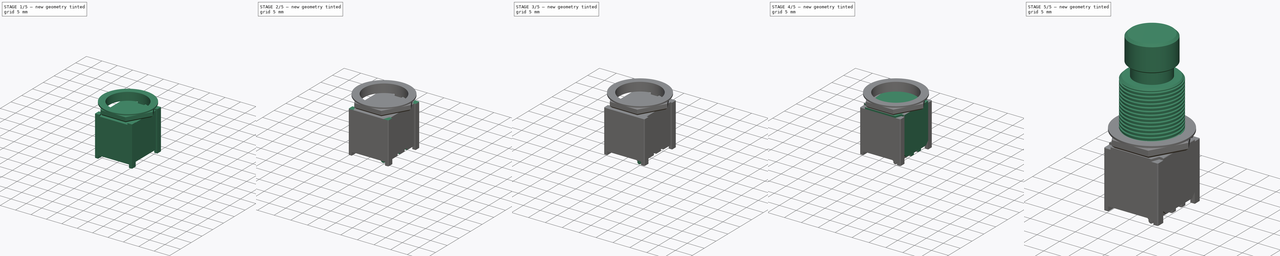
[diagram: build sequence overview — one tinted view per stage of 5, left to right]
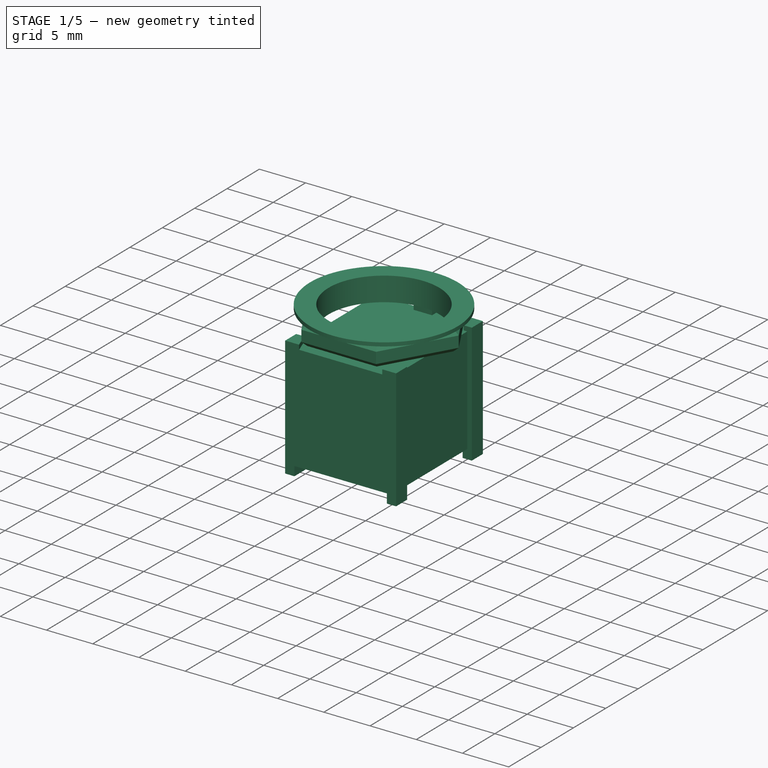
[diagram: stage 1 of 5 — iso view after this stage's code; geometry added in this stage tinted green]
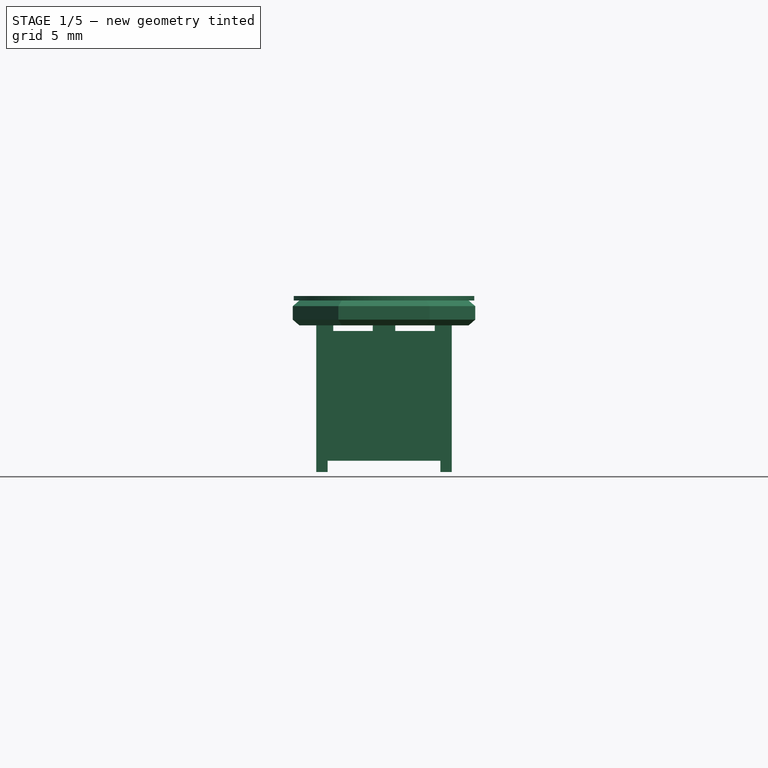
[diagram: stage 1 of 5 — front view after this stage's code; geometry added in this stage tinted green]
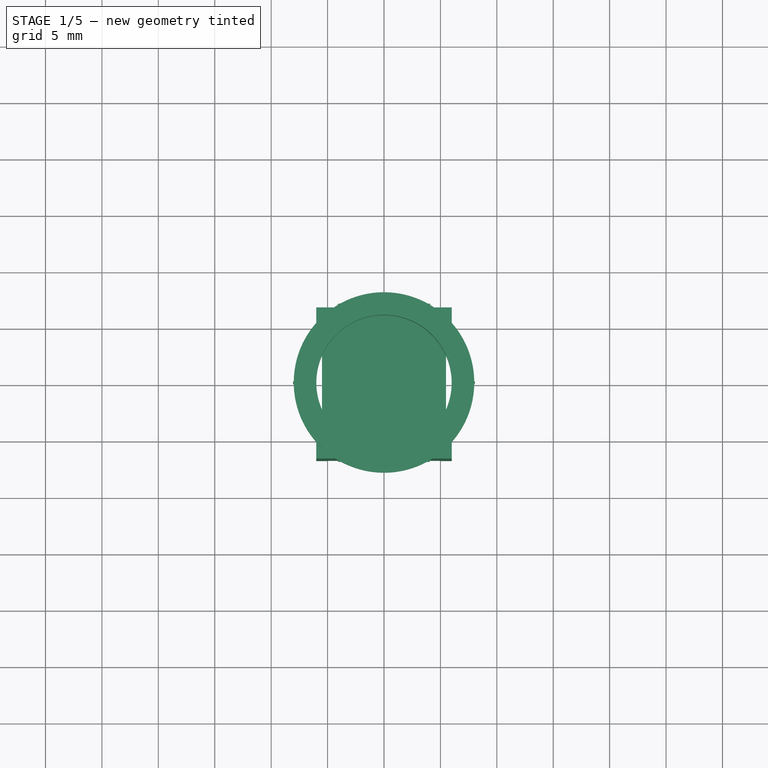
[diagram: stage 1 of 5 — top view after this stage's code; geometry added in this stage tinted green]
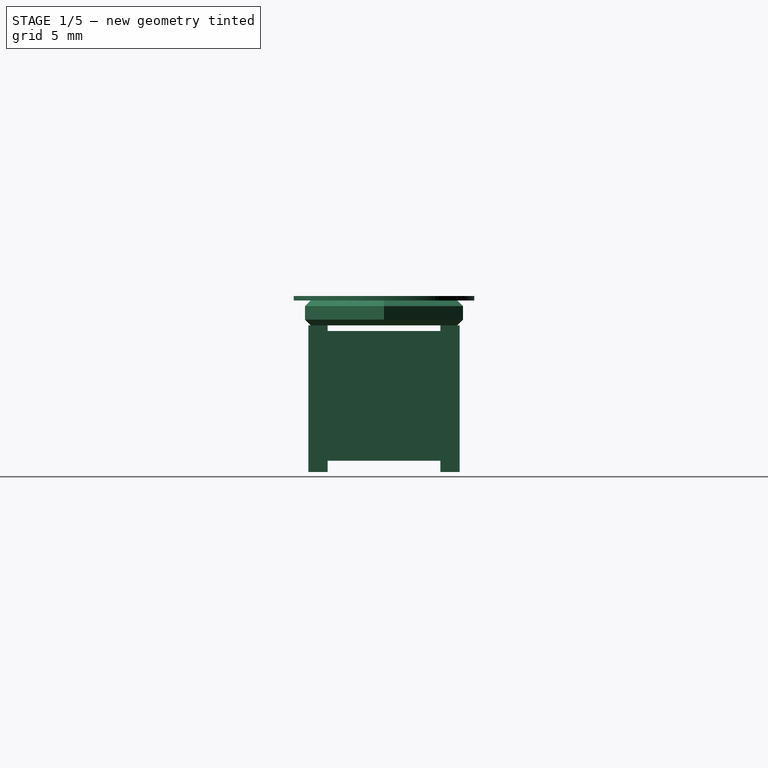
[diagram: stage 1 of 5 — right view after this stage's code; geometry added in this stage tinted green]
FCSTD DOCUMENT  (FreeCAD 0.19R16945 (Git))
Label: Alpha Taiwan SF12011 SF12020
License: All rights reserved
LicenseURL: http://en.wikipedia.org/wiki/All_rights_reserved
objects: PartDesign::Body×29, Sketcher::SketchObject×22, PartDesign::FeatureBase×19, PartDesign::Pad×14, PartDesign::Mirrored×10, PartDesign::Pocket×7, PartDesign::ShapeBinder×6, PartDesign::Fillet×6, PartDesign::Chamfer×4, PartDesign::MultiTransform×4, App::DocumentObjectGroup×4, Part::Helix×1, PartDesign::SubtractivePipe×1
note: 145 computed .brp shape members not serialized (recipe doc carries the construction recipe); baked Part::Feature solids carry a one-line shape summary decoded from their .brp

FEATURE [Sketcher::SketchObject] Sketch
  MapMode = 5
  Support = -> [XY_Plane]
  sketch-geometry (4):
    g0: LineSegment StartX=-6 StartY=6.7 StartZ=0 EndX=6 EndY=6.7 EndZ=0
    g1: LineSegment StartX=6 StartY=6.7 StartZ=0 EndX=6 EndY=-6.7 EndZ=0
    g2: LineSegment StartX=6 StartY=-6.7 StartZ=0 EndX=-6 EndY=-6.7 EndZ=0
    g3: LineSegment StartX=-6 StartY=-6.7 StartZ=0 EndX=-6 EndY=6.7 EndZ=0
  constraints (10):
    c: Coincident(g0,g1)
    c: Coincident(g1,g2)
    c: Coincident(g2,g3)
    c: Coincident(g3,g0)
    c: Horizontal(g2)
    c: Vertical(g3)
    c: Symmetric(g0,g0,g-2)
    c: Symmetric(g0,g1,g-1)
    c: DistanceX(g0,g0) = 12
    c: DistanceY(g1,g1) = 13.4
FEATURE [PartDesign::Pad] Pad
  Length = 13
  Length2 = 100
  Profile = -> Sketch
  Type = 0
FEATURE [PartDesign::Body] Body002  label="Cap"
  Group = -> [CopySubtractivePipe,Sketch004,Pad003,Sketch005,Pad004,Chamfer,Chamfer002]
  Origin = -> Origin002
  Tip = -> Chamfer002
FEATURE [Sketcher::SketchObject] Sketch009
  MapMode = 5
  Placement = pos=(-6,0,0) rot=(0.57735,-0.57735,-0.57735;2.0944rad)
  Support = -> [Pad]
  sketch-geometry (4):
    g0: LineSegment StartX=-5 StartY=0 StartZ=0 EndX=5 EndY=0 EndZ=0
    g1: LineSegment StartX=5 StartY=0 StartZ=0 EndX=5 EndY=13 EndZ=0
    g2: LineSegment StartX=5 StartY=13 StartZ=0 EndX=-5 EndY=13 EndZ=0
    g3: LineSegment StartX=-5 StartY=13 StartZ=0 EndX=-5 EndY=0 EndZ=0
  constraints (11):
    c: Coincident(g0,g1)
    c: Coincident(g1,g2)
    c: Coincident(g2,g3)
    c: Coincident(g3,g0)
    c: Horizontal(g2)
    c: Vertical(g1)
    c: Vertical(g3)
    c: PointOnObject(g0,g-1)
    c: Symmetric(g0,g0,g-2)
    c: DistanceY(g1,g1) = 13
    c: DistanceX(g0,g0) = 10
FEATURE [PartDesign::Pocket] Pocket
  BaseFeature = -> Pad
  Length = 0.5
  Length2 = 100
  Profile = -> Sketch009
  Type = 0
FEATURE [PartDesign::Mirrored] Mirrored
  BaseFeature = -> Pocket
  MirrorPlane = -> YZ_Plane
  Originals = -> [Pocket]
FEATURE [Sketcher::SketchObject] Sketch010
  MapMode = 5
  Placement = pos=(-5.5,0,0) rot=(0.57735,-0.57735,-0.57735;2.0944rad)
  Support = -> [Mirrored]
  sketch-geometry (4):
    g0: LineSegment StartX=-5 StartY=0 StartZ=0 EndX=-5 EndY=1 EndZ=0
    g1: LineSegment StartX=-5 StartY=1 StartZ=0 EndX=5 EndY=1 EndZ=0
    g2: LineSegment StartX=5 StartY=1 StartZ=0 EndX=5 EndY=0 EndZ=0
    g3: LineSegment StartX=-5 StartY=0 StartZ=0 EndX=5 EndY=0 EndZ=0
  constraints (11):
    c: PointOnObject(g0,g-1)
    c: Coincident(g0,g1)
    c: Coincident(g1,g2)
    c: Vertical(g2)
    c: Vertical(g0)
    c: Symmetric(g2,g0,g-2)
    c: Coincident(g3,g0)
    c: Coincident(g3,g2)
    c: DistanceY(g2,g2) = 1
    c: Horizontal(g1)
    c: DistanceX(g1,g1) = 10
FEATURE [PartDesign::Pocket] Pocket001
  BaseFeature = -> Mirrored
  Length = 5
  Length2 = 100
  Profile = -> Sketch010
  Type = 1
FEATURE [Sketcher::SketchObject] Sketch012
  AttachmentOffset = pos=(0,0,13) rot=(0,0,1;0rad)
  MapMode = 5
  Placement = pos=(0,0,13) rot=(0,0,1;0rad)
  Support = -> [XY_Plane]
  sketch-geometry (10):
    g0: LineSegment StartX=-4.5 StartY=6.7 StartZ=0 EndX=-5.11875 EndY=5 EndZ=0
    g1: LineSegment StartX=-5.11875 StartY=5 StartZ=0 EndX=-5.5 EndY=5 EndZ=0
    g2: LineSegment StartX=0 StartY=-6.7 StartZ=0 EndX=-4.5 EndY=-6.7 EndZ=0
    g3: LineSegment StartX=-4.5 StartY=-6.7 StartZ=0 EndX=-5.11875 EndY=-5 EndZ=0
    g4: LineSegment StartX=-5.11875 StartY=-5 StartZ=0 EndX=-5.5 EndY=-5 EndZ=0
    g5: LineSegment StartX=-5.5 StartY=5 StartZ=0 EndX=-5.5 EndY=-5 EndZ=0
    g6: LineSegment StartX=-4.5 StartY=6.7 StartZ=0 EndX=-1 EndY=6.7 EndZ=0
    g7: LineSegment StartX=-1 StartY=6.7 StartZ=0 EndX=-1 EndY=6 EndZ=0
    g8: LineSegment StartX=-1 StartY=6 StartZ=0 EndX=0 EndY=6 EndZ=0
    g9: LineSegment StartX=0 StartY=6 StartZ=0 EndX=0 EndY=-6.7 EndZ=0
  constraints (20):
    c: Coincident(g0,g1)
    c: Horizontal(g1)
    c: Coincident(g2,g3)
    c: Coincident(g3,g4)
    c: Horizontal(g4)
    c: Coincident(g5,g1)
    c: Coincident(g5,g4)
    c: Equal(g0,g3)
    c: Equal(g4,g1)
    c: Coincident(g0,g6)
    c: Coincident(g6,g7)
    c: Vertical(g7)
    c: Coincident(g7,g8)
    c: PointOnObject(g8,g-2)
    c: Coincident(g8,g9)
    c: Coincident(g9,g2)
    c: Vertical(g9)
    c: Horizontal(g8)
    c: DistanceX(g8,g8) = 1
    c: DistanceY(g7,g7) = 0.7
FEATURE [PartDesign::Pocket] Pocket003
  BaseFeature = -> Pocket001
  Length = 0.5
  Length2 = 100
  Profile = -> Sketch012
  Refine = true
  Type = 0
FEATURE [PartDesign::Mirrored] Mirrored001
  BaseFeature = -> Pocket003
  MirrorPlane = -> YZ_Plane
  Originals = -> [Pocket003]
  Refine = true
FEATURE [PartDesign::Body] Body001  label="Thread"
  Group = -> [CopyPad001,Sketch002,Pad002,ShapeBinder,Sketch003,Chamfer001,SubtractivePipe,Sketch008,Pad007,Sketch015,Pocket005]
  Origin = -> Origin001
  Tip = -> Pocket005
FEATURE [Sketcher::SketchObject] Sketch017
  AttachmentOffset = pos=(0,0,6.85) rot=(0,0,1;0rad)
  MapMode = 5
  Placement = pos=(0,-6.85,-1.5e-15) rot=(1,0,0;1.5708rad)
  Support = -> [XZ_Plane]
  sketch-geometry (4):
    g0: LineSegment StartX=-5 StartY=0 StartZ=0 EndX=5 EndY=0 EndZ=0
    g1: LineSegment StartX=5 StartY=0 StartZ=0 EndX=5 EndY=1 EndZ=0
    g2: LineSegment StartX=5 StartY=1 StartZ=0 EndX=-5 EndY=1 EndZ=0
    g3: LineSegment StartX=-5 StartY=1 StartZ=0 EndX=-5 EndY=0 EndZ=0
  constraints (11):
    c: Coincident(g0,g1)
    c: Coincident(g1,g2)
    c: Coincident(g2,g3)
    c: Coincident(g3,g0)
    c: Horizontal(g2)
    c: Vertical(g1)
    c: Vertical(g3)
    c: PointOnObject(g0,g-1)
    c: Symmetric(g0,g0,g-2)
    c: DistanceX(g0,g0) = 10
    c: DistanceY(g1,g1) = 1
FEATURE [PartDesign::Pocket] Pocket006
  BaseFeature = -> Mirrored001
  Length = 5
  Length2 = 100
  Profile = -> Sketch017
  Type = 1
FEATURE [PartDesign::Body] Body  label="BodyPlastic"
  Group = -> [Sketch,Pad,Sketch009,Pocket,Mirrored,Sketch010,Pocket001,Sketch012,Pocket003,Mirrored001,Sketch017,Pocket006,Sketch019,Pocket007,MultiTransform,Mirrored002,Mirrored003,Fillet002,Fillet004,Fillet005,ShapeBinder003,Sketch027,Pocket008,MultiTransform003,Mirrored008,Mirrored009]
  Origin = -> Origin
  Tip = -> MultiTransform003
FEATURE [Sketcher::SketchObject] Sketch028
  AttachmentOffset = pos=(0,0,13) rot=(0,0,1;0rad)
  MapMode = 5
  Placement = pos=(0,0,13) rot=(0,0,1;0rad)
  Support = -> [XY_Plane035]
  sketch-geometry (8):
    g0: Circle CenterX=0 CenterY=0 CenterZ=0 NormalX=0 NormalY=0 NormalZ=1 AngleXU=0 Radius=6
    g1: LineSegment StartX=4.04145 StartY=7 StartZ=0 EndX=-4.04145 EndY=7 EndZ=0
    g2: LineSegment StartX=-4.04145 StartY=7 StartZ=0 EndX=-8.0829 EndY=0 EndZ=0
    g3: LineSegment StartX=-8.0829 StartY=1e-16 StartZ=0 EndX=-4.04145 EndY=-7 EndZ=0
    g4: LineSegment StartX=-4.04145 StartY=-7 StartZ=0 EndX=4.04145 EndY=-7 EndZ=0
    g5: LineSegment StartX=4.04145 StartY=-7 StartZ=0 EndX=8.0829 EndY=9e-16 EndZ=0
    g6: LineSegment StartX=8.0829 StartY=9e-16 StartZ=0 EndX=4.04145 EndY=7 EndZ=0
    g7: Circle [constr] CenterX=4e-16 CenterY=0 CenterZ=0 NormalX=0 NormalY=0 NormalZ=1 AngleXU=0 Radius=8.0829
  constraints (18):
    c: Coincident(g0,g-1)
    c: Coincident(g1,g2)
    c: Coincident(g2,g3)
    c: Coincident(g3,g4)
    c: Coincident(g4,g5)
    c: Coincident(g5,g6)
    c: Coincident(g6,g1)
    c: Equal(g1, g2-g6) x5
    c: PointOnObject(g1,g7)
    c: PointOnObject(g2,g7)
    c: PointOnObject(g3,g7)
    c: PointOnObject(g4,g7)
    c: PointOnObject(g5,g7)
    c: PointOnObject(g6,g7)
    c: PointOnObject(g7,g-1)
    c: Radius(g0) = 6
    c: DistanceY(g4,g1) = 14
    c: Symmetric(g1,g1,g-2)
FEATURE [PartDesign::Pad] Pad016
  Length = 2.2
  Length2 = 100
  Profile = -> Sketch028
  Type = 0
FEATURE [PartDesign::Chamfer] Chamfer003
  Base = -> Pad016 [Edge16,Edge18,Edge15,Edge17,Edge4,Edge3,Edge7,Edge6,Edge13,Edge12,Edge9,Edge10]
  BaseFeature = -> Pad016
  Size = 0.5
FEATURE [PartDesign::Body] Body035  label="Nut"
  Group = -> [Sketch028,Pad016,Chamfer003]
  Origin = -> Origin035
  Tip = -> Chamfer003
FEATURE [Sketcher::SketchObject] Sketch029
  AttachmentOffset = pos=(0,0,15.2) rot=(0,0,1;0rad)
  MapMode = 5
  Placement = pos=(0,0,15.2) rot=(0,0,1;0rad)
  Support = -> [XY_Plane036]
  sketch-geometry (2):
    g0: Circle CenterX=0 CenterY=0 CenterZ=0 NormalX=0 NormalY=0 NormalZ=1 AngleXU=0 Radius=6
    g1: Circle CenterX=0 CenterY=0 CenterZ=0 NormalX=0 NormalY=0 NormalZ=1 AngleXU=0 Radius=8
  constraints (4):
    c: Coincident(g0,g-1)
    c: Coincident(g1,g0)
    c: Radius(g0) = 6
    c: Radius(g1) = 8
FEATURE [PartDesign::Pad] Pad017
  Length = 0.4
  Length2 = 100
  Profile = -> Sketch029
  Type = 0
FEATURE [PartDesign::Body] Body036  label="Washer"
  Group = -> [Sketch029,Pad017]
  Origin = -> Origin036
  Tip = -> Pad017
FEATURE [PartDesign::FeatureBase] Clone021
  BaseFeature = -> Body035
FEATURE [PartDesign::Body] Body037  label="NutClone"
  Group = -> [Clone021]
  Origin = -> Origin037
  Placement = pos=(0,0,2.6) rot=(0,0,1;0rad)
  Tip = -> Clone021
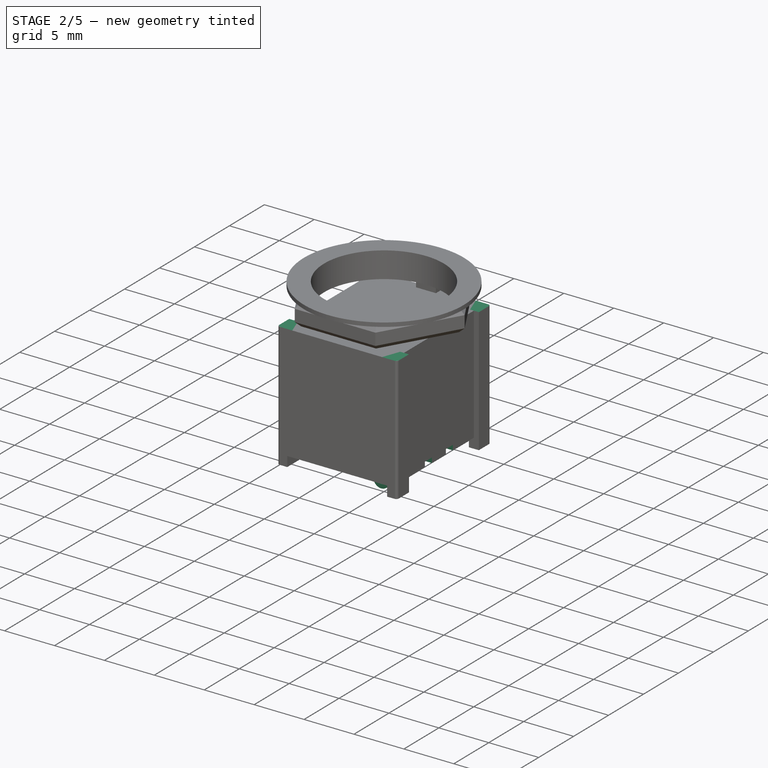
[diagram: stage 2 of 5 — iso view after this stage's code; geometry added in this stage tinted green]
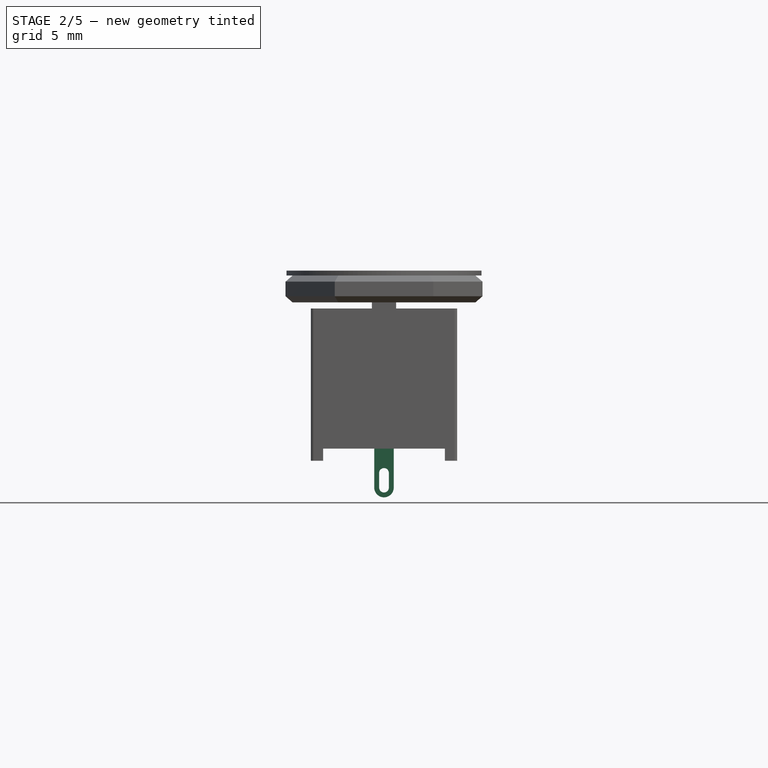
[diagram: stage 2 of 5 — front view after this stage's code; geometry added in this stage tinted green]
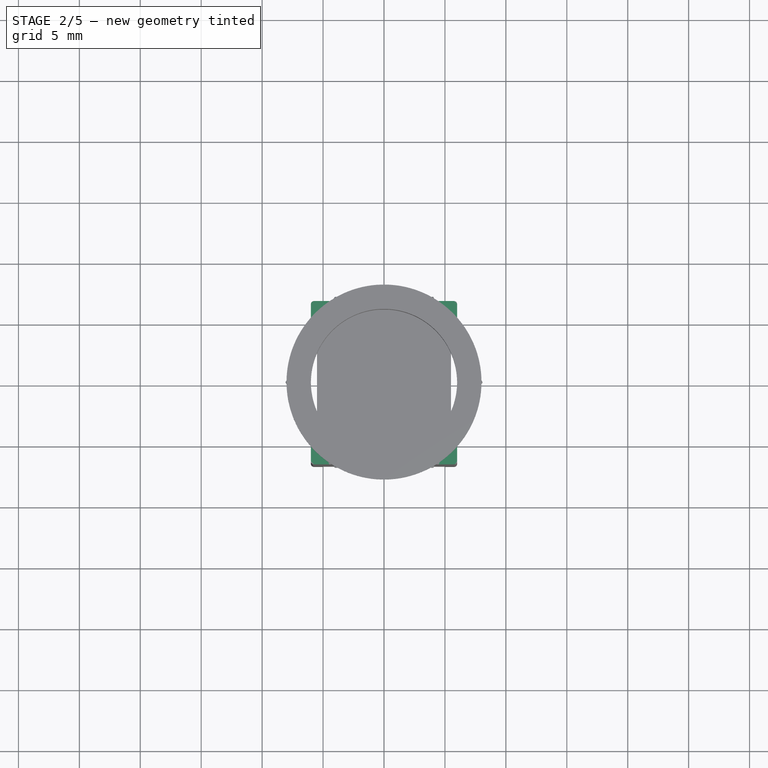
[diagram: stage 2 of 5 — top view after this stage's code; geometry added in this stage tinted green]
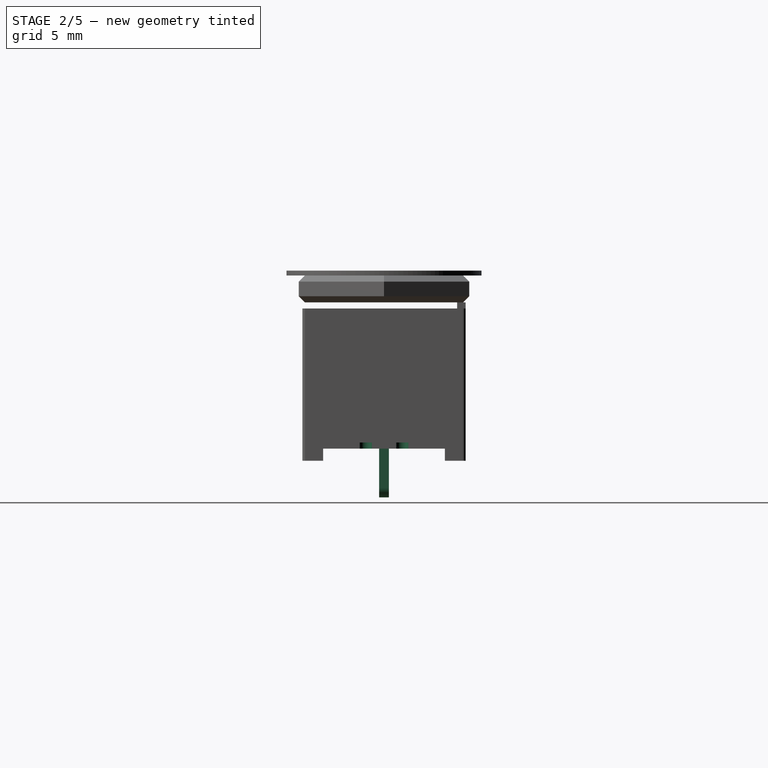
[diagram: stage 2 of 5 — right view after this stage's code; geometry added in this stage tinted green]
FEATURE [Sketcher::SketchObject] Sketch019
  AttachmentOffset = pos=(0,0,6) rot=(0,0,1;0rad)
  MapMode = 5
  Placement = pos=(6,-1.3e-15,1.3e-15) rot=(0.57735,0.57735,0.57735;2.0944rad)
  Support = -> [YZ_Plane]
  sketch-geometry (4):
    g0: LineSegment StartX=-2 StartY=1 StartZ=0 EndX=-1 EndY=1 EndZ=0
    g1: LineSegment StartX=-1 StartY=1 StartZ=0 EndX=-1 EndY=1.5 EndZ=0
    g2: LineSegment StartX=-1 StartY=1.5 StartZ=0 EndX=-2 EndY=1.5 EndZ=0
    g3: LineSegment StartX=-2 StartY=1.5 StartZ=0 EndX=-2 EndY=1 EndZ=0
  constraints (12):
    c: Coincident(g0,g1)
    c: Coincident(g1,g2)
    c: Coincident(g2,g3)
    c: Coincident(g3,g0)
    c: Horizontal(g0)
    c: Horizontal(g2)
    c: Vertical(g1)
    c: Vertical(g3)
    c: DistanceX(g0,g0) = 1
    c: DistanceY(g1,g1) = 0.5
    c: DistanceY(g-1,g0) = 1
    c: DistanceX(g0,g-1) = 1
FEATURE [PartDesign::Pocket] Pocket007
  BaseFeature = -> Pocket006
  Length = 1.5
  Length2 = 100
  Profile = -> Sketch019
  Type = 0
FEATURE [PartDesign::Mirrored] Mirrored002
  MirrorPlane = -> YZ_Plane
FEATURE [PartDesign::Mirrored] Mirrored003
  MirrorPlane = -> XZ_Plane
FEATURE [PartDesign::MultiTransform] MultiTransform
  BaseFeature = -> Pocket007
  Originals = -> [Pocket007]
  Refine = true
  Transformations = -> [Mirrored002,Mirrored003]
FEATURE [PartDesign::Fillet] Fillet002
  Base = -> MultiTransform [Edge83,Edge16,Edge87,Edge6]
  BaseFeature = -> MultiTransform
  Radius = 0.25
FEATURE [PartDesign::Body] Body009  label="BodyMetal"
  Group = -> [Sketch018,ShapeBinder001,Pad008,ShapeBinder002,Sketch020,Pad009,MultiTransform001,Mirrored004,Mirrored005,Sketch021,Pad010,MultiTransform002,Mirrored006,Mirrored007,Fillet,Fillet001,Fillet003]
  Origin = -> Origin009
  Tip = -> Fillet003
FEATURE [PartDesign::Fillet] Fillet004
  Base = -> Fillet002 [Edge96,Edge102,Vertex74,Edge104,Edge98]
  BaseFeature = -> Fillet002
  Radius = 0.499
FEATURE [PartDesign::Fillet] Fillet005
  Base = -> Fillet004 [Edge99,Edge114,Edge110,Edge95]
  BaseFeature = -> Fillet004
  Radius = 0.499
FEATURE [PartDesign::Body] Body010  label="Pin_0.5"
  Group = -> [Sketch022,Pad011]
  Origin = -> Origin010
  Tip = -> Pad011
FEATURE [Sketcher::SketchObject] Sketch024
  MapMode = 5
  Placement = pos=(0,0,0) rot=(1,0,0;1.5708rad)
  Support = -> [XZ_Plane012]
  sketch-geometry (11):
    g0: LineSegment StartX=-0.8 StartY=1 StartZ=0 EndX=0.8 EndY=1 EndZ=0
    g1: LineSegment StartX=0.8 StartY=1 StartZ=0 EndX=0.8 EndY=-2.2 EndZ=0
    g2: LineSegment StartX=-0.8 StartY=-2.2 StartZ=0 EndX=-0.8 EndY=1 EndZ=0
    g3: ArcOfCircle CenterX=0 CenterY=-2.2 CenterZ=0 NormalX=0 NormalY=0 NormalZ=1 AngleXU=0 Radius=0.8 StartAngle=3.14159 EndAngle=6.28319
    g4: GeomPoint X=0 Y=-3 Z=0
    g5: ArcOfCircle CenterX=0 CenterY=-1 CenterZ=0 NormalX=0 NormalY=0 NormalZ=1 AngleXU=0 Radius=0.4 StartAngle=3e-16 EndAngle=3.14159
    g6: ArcOfCircle CenterX=0 CenterY=-2.2 CenterZ=0 NormalX=0 NormalY=0 NormalZ=1 AngleXU=0 Radius=0.4 StartAngle=3.14159 EndAngle=6.28319
    g7: LineSegment StartX=-0.4 StartY=-1 StartZ=0 EndX=-0.4 EndY=-2.2 EndZ=0
    g8: LineSegment StartX=0.4 StartY=-1 StartZ=0 EndX=0.4 EndY=-2.2 EndZ=0
    g9: GeomPoint X=0 Y=-0.6 Z=0
    g10: GeomPoint X=0 Y=-2.6 Z=0
  constraints (28):
    c: Coincident(g0,g1)
    c: Coincident(g2,g0)
    c: Horizontal(g0)
    c: Vertical(g1)
    c: Vertical(g2)
    c: Symmetric(g2,g1,g-2)
    c: DistanceX(g2,g1) = 1.6
    c: DistanceY(g-1,g0) = 1
    c: Coincident(g3,g2)
    c: Coincident(g3,g1)
    c: PointOnObject(g4,g3)
    c: PointOnObject(g4,g-2)
    c: DistanceY(g4,g-1) = 3
    c: Horizontal(g3,g1)
    c: Tangent(g5,g8) = 1.5708
    c: Tangent(g5,g7) = -1.5708
    c: Tangent(g7,g6) = -1.5708
    c: Tangent(g8,g6) = 1.5708
    c: Vertical(g7)
    c: Equal(g5,g6)
    c: PointOnObject(g5,g-2)
    c: PointOnObject(g9,g5)
    c: PointOnObject(g10,g6)
    c: PointOnObject(g10,g-2)
    c: PointOnObject(g9,g-2)
    c: DistanceY(g10,g9) = 2
    c: DistanceX(g5,g5) = 0.8
    c: DistanceY(g4,g10) = 0.4
FEATURE [PartDesign::Pad] Pad013
  Length = 0.5
  Length2 = 100
  Midplane = true
  Placement = pos=(0,0,0) rot=(1,0,0;1.5708rad)
  Profile = -> Sketch024
  Type = 0
FEATURE [PartDesign::Body] Body012  label="Terminal_0.5"
  Group = -> [Sketch024,Pad013]
  Origin = -> Origin012
  Tip = -> Pad013
FEATURE [Sketcher::SketchObject] Sketch025
  MapMode = 5
  Placement = pos=(0,0,0) rot=(1,0,0;1.5708rad)
  Support = -> [XZ_Plane013]
  expr: Constraints[27] = Sketch024.Constraints[27]
  expr: Constraints[26] = Sketch024.Constraints[26]
  expr: Constraints[25] = Sketch024.Constraints[25]
  expr: Constraints[12] = Sketch024.Constraints[12]
  expr: Constraints[7] = Sketch024.Constraints[7]
  expr: Constraints[6] = Sketch024.Constraints[6]
  sketch-geometry (11):
    g0: LineSegment StartX=-0.8 StartY=1 StartZ=0 EndX=0.8 EndY=1 EndZ=0
    g1: LineSegment StartX=0.8 StartY=1 StartZ=0 EndX=0.8 EndY=-2.2 EndZ=0
    g2: LineSegment StartX=-0.8 StartY=-2.2 StartZ=0 EndX=-0.8 EndY=1 EndZ=0
    g3: ArcOfCircle CenterX=0 CenterY=-2.2 CenterZ=0 NormalX=0 NormalY=0 NormalZ=1 AngleXU=0 Radius=0.8 StartAngle=3.14159 EndAngle=6.28319
    g4: GeomPoint X=0 Y=-3 Z=0
    g5: ArcOfCircle CenterX=0 CenterY=-1 CenterZ=0 NormalX=0 NormalY=0 NormalZ=1 AngleXU=0 Radius=0.4 StartAngle=3e-16 EndAngle=3.14159
    g6: ArcOfCircle CenterX=0 CenterY=-2.2 CenterZ=0 NormalX=0 NormalY=0 NormalZ=1 AngleXU=0 Radius=0.4 StartAngle=3.14159 EndAngle=6.28319
    g7: LineSegment StartX=-0.4 StartY=-1 StartZ=0 EndX=-0.4 EndY=-2.2 EndZ=0
    g8: LineSegment StartX=0.4 StartY=-1 StartZ=0 EndX=0.4 EndY=-2.2 EndZ=0
    g9: GeomPoint X=0 Y=-0.6 Z=0
    g10: GeomPoint X=0 Y=-2.6 Z=0
  constraints (28):
    c: Coincident(g0,g1)
    c: Coincident(g2,g0)
    c: Horizontal(g0)
    c: Vertical(g1)
    c: Vertical(g2)
    c: Symmetric(g2,g1,g-2)
    c: DistanceX(g2,g1) = 1.6
    c: DistanceY(g-1,g0) = 1
    c: Coincident(g3,g2)
    c: Coincident(g3,g1)
    c: PointOnObject(g4,g3)
    c: PointOnObject(g4,g-2)
    c: DistanceY(g4,g-1) = 3
    c: Horizontal(g3,g1)
    c: Tangent(g5,g8) = 1.5708
    c: Tangent(g5,g7) = -1.5708
    c: Tangent(g7,g6) = -1.5708
    c: Tangent(g8,g6) = 1.5708
    c: Vertical(g7)
    c: Equal(g5,g6)
    c: PointOnObject(g5,g-2)
    c: PointOnObject(g9,g5)
    c: PointOnObject(g10,g6)
    c: PointOnObject(g10,g-2)
    c: PointOnObject(g9,g-2)
    c: DistanceY(g10,g9) = 2
    c: DistanceX(g5,g5) = 0.8
    c: DistanceY(g4,g10) = 0.4
FEATURE [PartDesign::Pad] Pad014
  Length = 0.8
  Length2 = 100
  Midplane = true
  Placement = pos=(0,0,0) rot=(1,0,0;1.5708rad)
  Profile = -> Sketch025
  Type = 0
FEATURE [PartDesign::Body] Body031
  Group = -> [Clone017]
  Origin = -> Origin031
  Placement = pos=(2.5,4,0) rot=(0,0,1;0rad)
  Tip = -> Clone017
FEATURE [PartDesign::FeatureBase] Clone018
  BaseFeature = -> Body012
FEATURE [PartDesign::Body] Body032
  Group = -> [Clone018]
  Origin = -> Origin032
  Placement = pos=(-2.5,0,0) rot=(0,0,1;0rad)
  Tip = -> Clone018
FEATURE [PartDesign::FeatureBase] Clone019
  BaseFeature = -> Body013
FEATURE [PartDesign::Body] Body033
  Group = -> [Clone019]
  Origin = -> Origin033
  Placement = pos=(-2.5,4,0) rot=(0,0,1;0rad)
  Tip = -> Clone019
FEATURE [PartDesign::FeatureBase] Clone020
  BaseFeature = -> Body013
FEATURE [PartDesign::Body] Body034
  Group = -> [Clone020]
  Origin = -> Origin034
  Placement = pos=(-2.5,-4,0) rot=(0,0,1;0rad)
  Tip = -> Clone020
FEATURE [App::DocumentObjectGroup] Group003  label="DPDT_Terminals"
  Group = -> [Body029,Body030,Body031,Body032,Body033,Body034]
FEATURE [PartDesign::ShapeBinder] ShapeBinder003
  Support = -> [Fillet005]
  TraceSupport = false
FEATURE [Sketcher::SketchObject] Sketch027
  AttachmentOffset = pos=(0,0,13) rot=(0,0,1;0rad)
  ExternalGeometry = -> [ShapeBinder003,Sketch012]
  MapMode = 5
  Placement = pos=(0,0,13) rot=(0,0,1;0rad)
  Support = -> [XY_Plane]
  sketch-geometry (5):
    g0: LineSegment StartX=-5.75 StartY=6.7 StartZ=0 EndX=-4.5 EndY=6.7 EndZ=0
    g1: LineSegment StartX=-4.5 StartY=6.7 StartZ=0 EndX=-5.11875 EndY=5 EndZ=0
    g2: LineSegment StartX=-5.11875 StartY=5 StartZ=0 EndX=-6 EndY=5 EndZ=0
    g3: LineSegment StartX=-6 StartY=5 StartZ=0 EndX=-6 EndY=6.45 EndZ=0
    g4: ArcOfCircle CenterX=-5.75 CenterY=6.45 CenterZ=0 NormalX=0 NormalY=0 NormalZ=1 AngleXU=0 Radius=0.25 StartAngle=1.5708 EndAngle=3.14159
  constraints (11):
    c: Tangent(g-4,g0) = 1.5708
    c: Coincident(g0,g1)
    c: Coincident(g1,g-7)
    c: Coincident(g1,g2)
    c: Coincident(g2,g-5)
    c: Coincident(g2,g3)
    c: Coincident(g3,g-5)
    c: Coincident(g4,g-4)
    c: Coincident(g4,g3)
    c: Coincident(g4,g0)
    c: Coincident(g0,g-7)
FEATURE [PartDesign::Pocket] Pocket008
  BaseFeature = -> Fillet005
  Length = 0.5
  Length2 = 100
  Profile = -> Sketch027
  Type = 0
FEATURE [PartDesign::Mirrored] Mirrored008
  MirrorPlane = -> YZ_Plane
FEATURE [PartDesign::Mirrored] Mirrored009
  MirrorPlane = -> XZ_Plane
FEATURE [PartDesign::MultiTransform] MultiTransform003
  BaseFeature = -> Pocket008
  Originals = -> [Pocket008]
  Transformations = -> [Mirrored008,Mirrored009]
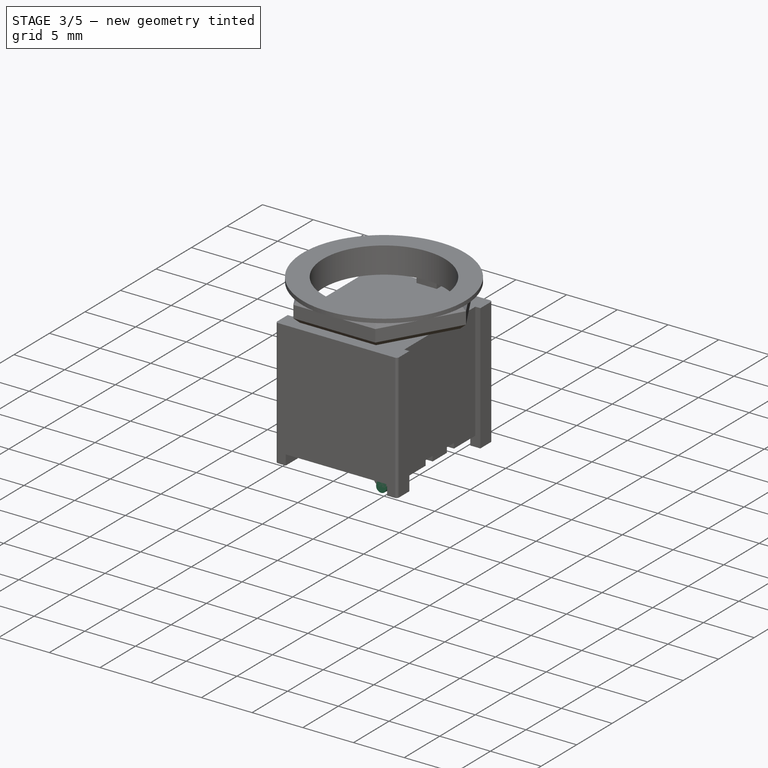
[diagram: stage 3 of 5 — iso view after this stage's code; geometry added in this stage tinted green]
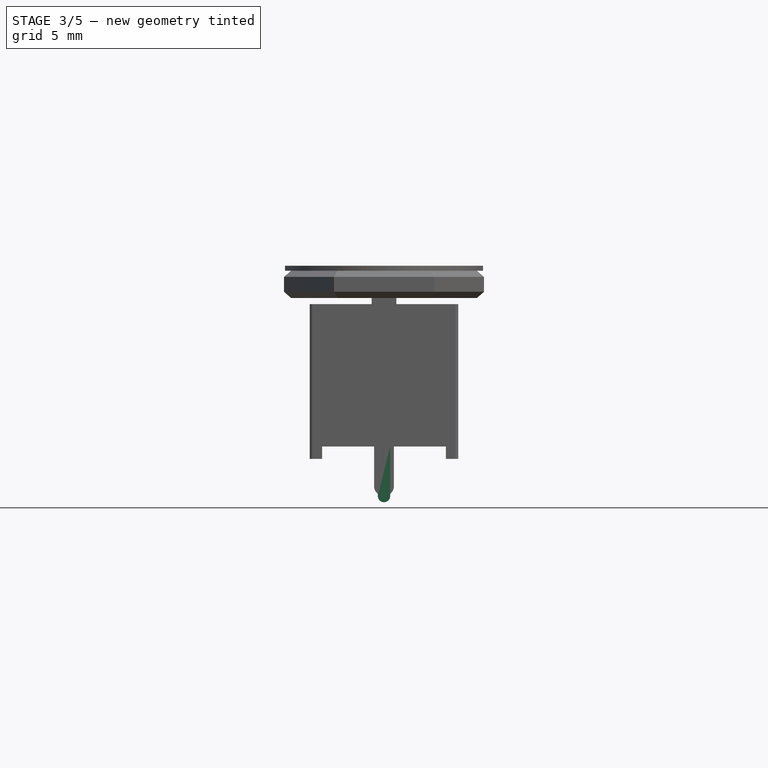
[diagram: stage 3 of 5 — front view after this stage's code; geometry added in this stage tinted green]
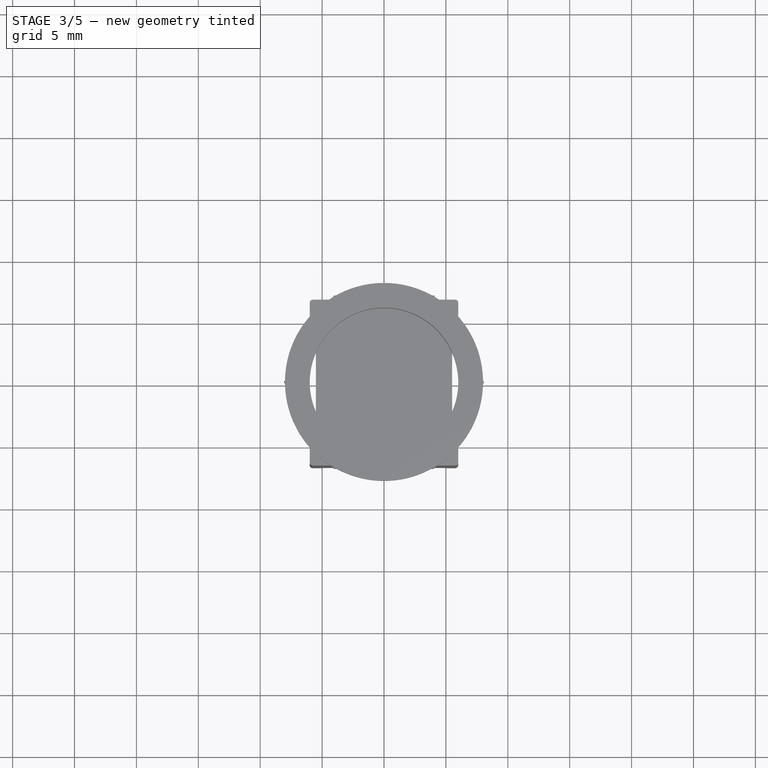
[diagram: stage 3 of 5 — top view after this stage's code; geometry added in this stage tinted green]
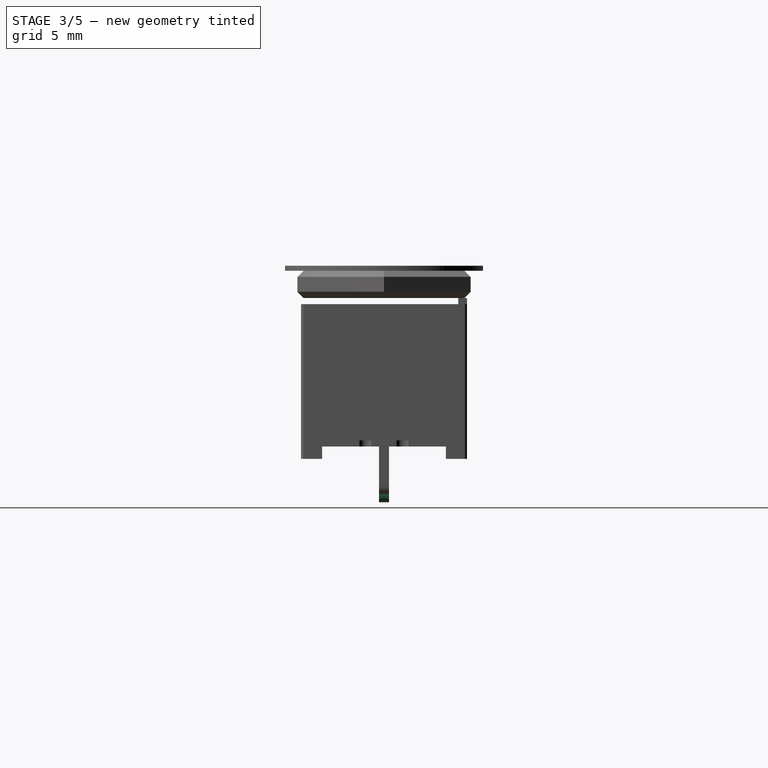
[diagram: stage 3 of 5 — right view after this stage's code; geometry added in this stage tinted green]
FEATURE [Sketcher::SketchObject] Sketch022
  MapMode = 5
  Placement = pos=(0,0,0) rot=(1,0,0;1.5708rad)
  Support = -> [XZ_Plane010]
  sketch-geometry (5):
    g0: LineSegment StartX=-0.5 StartY=1 StartZ=0 EndX=0.5 EndY=1 EndZ=0
    g1: LineSegment StartX=0.5 StartY=1 StartZ=0 EndX=0.5 EndY=-3 EndZ=0
    g2: LineSegment StartX=-0.5 StartY=-3 StartZ=0 EndX=-0.5 EndY=1 EndZ=0
    g3: ArcOfCircle CenterX=0 CenterY=-3 CenterZ=0 NormalX=0 NormalY=0 NormalZ=1 AngleXU=0 Radius=0.5 StartAngle=3.14159 EndAngle=6.28319
    g4: GeomPoint X=0 Y=-3.5 Z=0
  constraints (14):
    c: Coincident(g0,g1)
    c: Coincident(g2,g0)
    c: Horizontal(g0)
    c: Vertical(g1)
    c: Vertical(g2)
    c: Symmetric(g2,g1,g-2)
    c: DistanceX(g2,g1) = 1
    c: DistanceY(g-1,g0) = 1
    c: Coincident(g3,g2)
    c: Coincident(g3,g1)
    c: PointOnObject(g4,g3)
    c: PointOnObject(g4,g-2)
    c: DistanceY(g4,g-1) = 3.5
    c: Horizontal(g3,g1)
FEATURE [PartDesign::Pad] Pad011
  Length = 0.5
  Length2 = 100
  Midplane = true
  Placement = pos=(0,0,0) rot=(1,0,0;1.5708rad)
  Profile = -> Sketch022
  Type = 0
FEATURE [PartDesign::Body] Body013  label="Terminal_0.8"
  Group = -> [Sketch025,Pad014]
  Origin = -> Origin013
  Tip = -> Pad014
FEATURE [Sketcher::SketchObject] Sketch026
  MapMode = 5
  Placement = pos=(0,0,0) rot=(1,0,0;1.5708rad)
  Support = -> [XZ_Plane011]
  expr: Constraints[12] = Sketch022.Constraints[12]
  expr: Constraints[7] = Sketch022.Constraints[7]
  expr: Constraints[6] = Sketch022.Constraints[6]
  sketch-geometry (5):
    g0: LineSegment StartX=-0.5 StartY=1 StartZ=0 EndX=0.5 EndY=1 EndZ=0
    g1: LineSegment StartX=0.5 StartY=1 StartZ=0 EndX=0.5 EndY=-3 EndZ=0
    g2: LineSegment StartX=-0.5 StartY=-3 StartZ=0 EndX=-0.5 EndY=1 EndZ=0
    g3: ArcOfCircle CenterX=0 CenterY=-3 CenterZ=0 NormalX=0 NormalY=0 NormalZ=1 AngleXU=0 Radius=0.5 StartAngle=3.14159 EndAngle=6.28319
    g4: GeomPoint X=0 Y=-3.5 Z=0
  constraints (14):
    c: Coincident(g0,g1)
    c: Coincident(g2,g0)
    c: Horizontal(g0)
    c: Vertical(g1)
    c: Vertical(g2)
    c: Symmetric(g2,g1,g-2)
    c: DistanceX(g2,g1) = 1
    c: DistanceY(g-1,g0) = 1
    c: Coincident(g3,g2)
    c: Coincident(g3,g1)
    c: PointOnObject(g4,g3)
    c: PointOnObject(g4,g-2)
    c: DistanceY(g4,g-1) = 3.5
    c: Horizontal(g3,g1)
FEATURE [PartDesign::Pad] Pad015
  Length = 0.8
  Length2 = 100
  Midplane = true
  Placement = pos=(0,0,0) rot=(1,0,0;1.5708rad)
  Profile = -> Sketch026
  Type = 0
FEATURE [PartDesign::Body] Body022
  Group = -> [Clone008]
  Origin = -> Origin022
  Placement = pos=(2.5,4,0) rot=(0,0,1;0rad)
  Tip = -> Clone008
FEATURE [PartDesign::FeatureBase] Clone009
  BaseFeature = -> Body010
FEATURE [PartDesign::Body] Body023
  Group = -> [Clone009]
  Origin = -> Origin023
  Placement = pos=(-2.5,0,0) rot=(0,0,1;0rad)
  Tip = -> Clone009
FEATURE [PartDesign::FeatureBase] Clone010
  BaseFeature = -> Body011
FEATURE [PartDesign::Body] Body024
  Group = -> [Clone010]
  Origin = -> Origin024
  Placement = pos=(-2.5,4,0) rot=(0,0,1;0rad)
  Tip = -> Clone010
FEATURE [PartDesign::FeatureBase] Clone011
  BaseFeature = -> Body011
FEATURE [PartDesign::Body] Body025
  Group = -> [Clone011]
  Origin = -> Origin025
  Placement = pos=(-2.5,-4,0) rot=(0,0,1;0rad)
  Tip = -> Clone011
FEATURE [App::DocumentObjectGroup] Group001  label="DPDT_Pins"
  Group = -> [Body020,Body021,Body022,Body023,Body024,Body025]
FEATURE [PartDesign::FeatureBase] Clone012
  BaseFeature = -> Body012
FEATURE [PartDesign::Body] Body026
  Group = -> [Clone012]
  Origin = -> Origin026
  Placement = pos=(2.5,0,0) rot=(0,0,1;0rad)
  Tip = -> Clone012
FEATURE [PartDesign::FeatureBase] Clone013
  BaseFeature = -> Body013
FEATURE [PartDesign::Body] Body027
  Group = -> [Clone013]
  Origin = -> Origin027
  Placement = pos=(2.5,-4,0) rot=(0,0,1;0rad)
  Tip = -> Clone013
FEATURE [PartDesign::FeatureBase] Clone014
  BaseFeature = -> Body013
FEATURE [PartDesign::Body] Body028
  Group = -> [Clone014]
  Origin = -> Origin028
  Placement = pos=(2.5,4,0) rot=(0,0,1;0rad)
  Tip = -> Clone014
FEATURE [App::DocumentObjectGroup] Group002  label="SPDT_Terminals"
  Group = -> [Body026,Body027,Body028]
FEATURE [PartDesign::FeatureBase] Clone015
  BaseFeature = -> Body012
FEATURE [PartDesign::Body] Body029
  Group = -> [Clone015]
  Origin = -> Origin029
  Placement = pos=(2.5,0,0) rot=(0,0,1;0rad)
  Tip = -> Clone015
FEATURE [PartDesign::FeatureBase] Clone016
  BaseFeature = -> Body013
FEATURE [PartDesign::Body] Body030
  Group = -> [Clone016]
  Origin = -> Origin030
  Placement = pos=(2.5,-4,0) rot=(0,0,1;0rad)
  Tip = -> Clone016
FEATURE [PartDesign::FeatureBase] Clone017
  BaseFeature = -> Body013
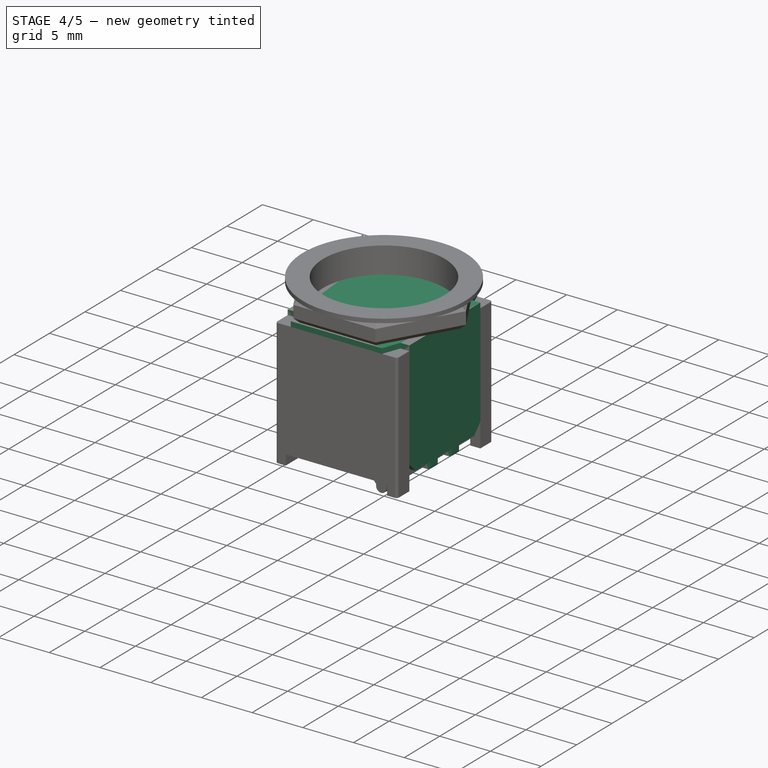
[diagram: stage 4 of 5 — iso view after this stage's code; geometry added in this stage tinted green]
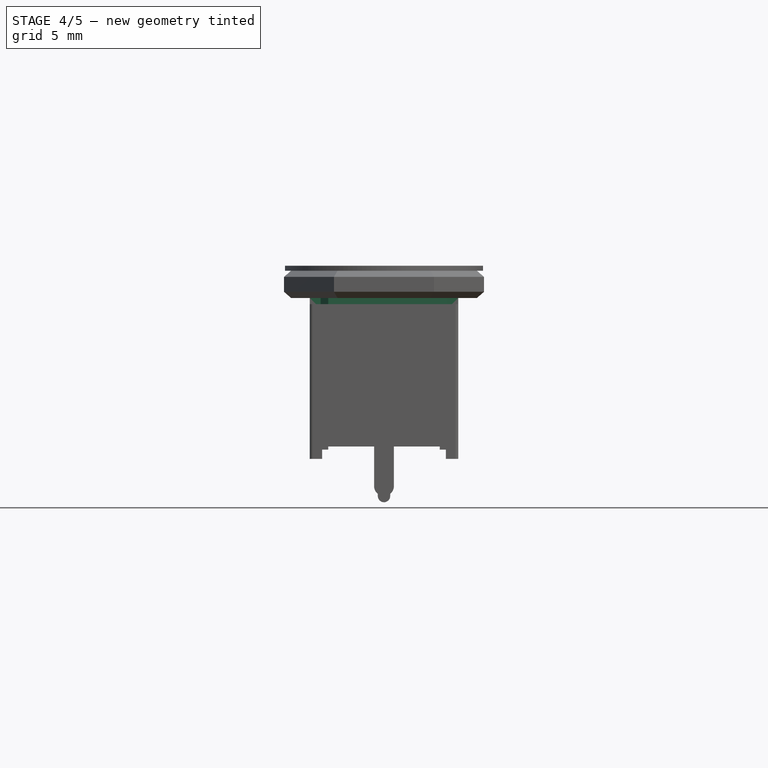
[diagram: stage 4 of 5 — front view after this stage's code; geometry added in this stage tinted green]
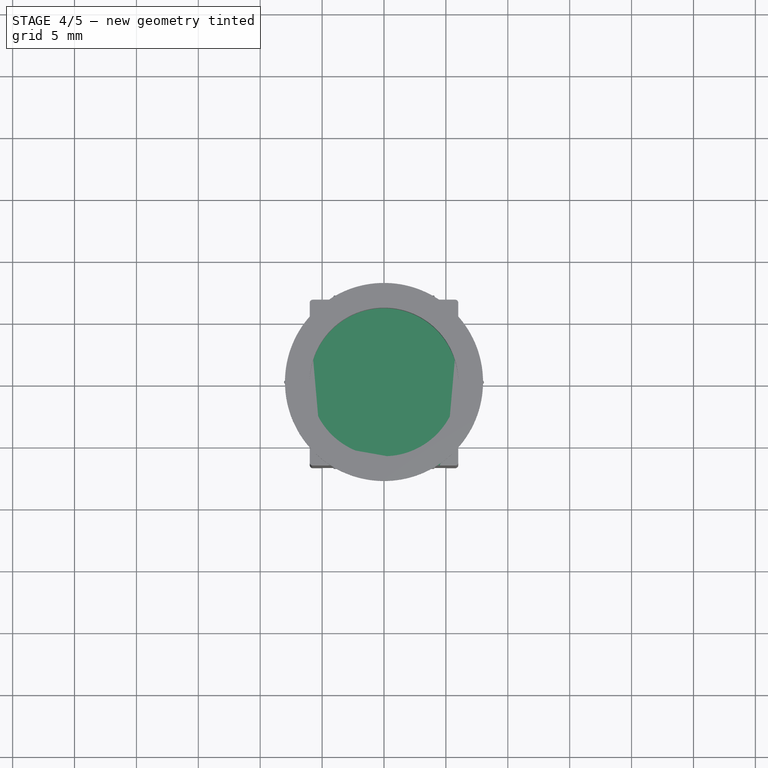
[diagram: stage 4 of 5 — top view after this stage's code; geometry added in this stage tinted green]
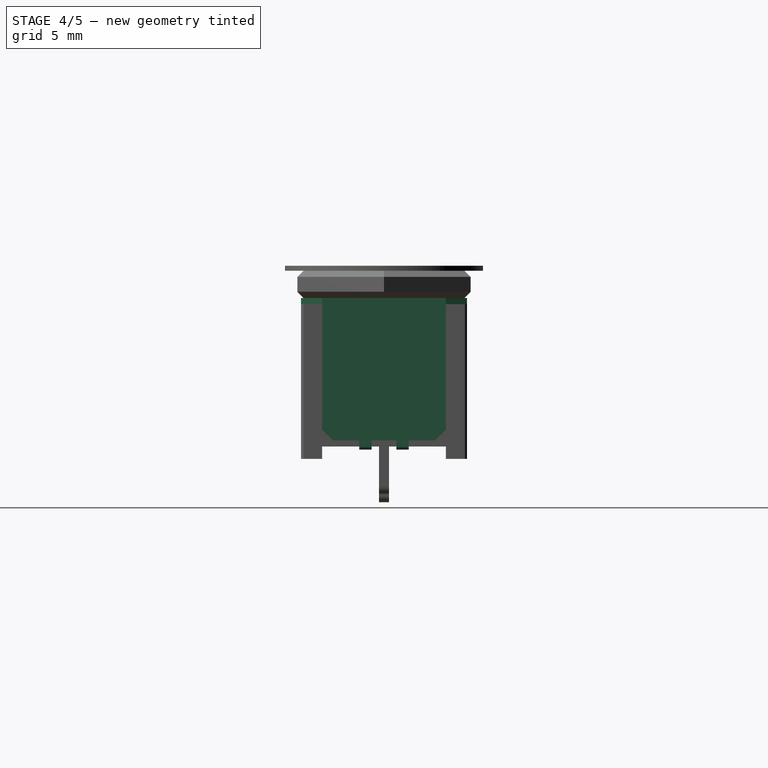
[diagram: stage 4 of 5 — right view after this stage's code; geometry added in this stage tinted green]
FEATURE [PartDesign::ShapeBinder] ShapeBinder001
  Support = -> [Pocket006]
  TraceSupport = false
FEATURE [Sketcher::SketchObject] Sketch018
  AttachmentOffset = pos=(0,0,13) rot=(0,0,1;0rad)
  ExternalGeometry = -> [ShapeBinder001]
  MapMode = 5
  Placement = pos=(0,0,13) rot=(0,0,1;0rad)
  Support = -> [XY_Plane009]
  sketch-geometry (16):
    g0: LineSegment StartX=-1 StartY=6 StartZ=0 EndX=-1 EndY=6.7 EndZ=0
    g1: LineSegment StartX=-1 StartY=6.7 StartZ=0 EndX=-4.5 EndY=6.7 EndZ=0
    g2: LineSegment StartX=-4.5 StartY=6.7 StartZ=0 EndX=-5.11875 EndY=5 EndZ=0
    g3: LineSegment StartX=-5.11875 StartY=5 StartZ=0 EndX=-5.5 EndY=5 EndZ=0
    g4: LineSegment StartX=-5.5 StartY=5 StartZ=0 EndX=-5.5 EndY=-5 EndZ=0
    g5: LineSegment StartX=-5.5 StartY=-5 StartZ=0 EndX=-5.11875 EndY=-5 EndZ=0
    g6: LineSegment StartX=-5.11875 StartY=-5 StartZ=0 EndX=-4.5 EndY=-6.7 EndZ=0
    g7: LineSegment StartX=-4.5 StartY=-6.7 StartZ=0 EndX=4.5 EndY=-6.7 EndZ=0
    g8: LineSegment StartX=4.5 StartY=-6.7 StartZ=0 EndX=5.11875 EndY=-5 EndZ=0
    g9: LineSegment StartX=5.11875 StartY=-5 StartZ=0 EndX=5.5 EndY=-5 EndZ=0
    g10: LineSegment StartX=5.5 StartY=-5 StartZ=0 EndX=5.5 EndY=5 EndZ=0
    g11: LineSegment StartX=5.5 StartY=5 StartZ=0 EndX=5.11875 EndY=5 EndZ=0
    g12: LineSegment StartX=5.11875 StartY=5 StartZ=0 EndX=4.5 EndY=6.7 EndZ=0
    g13: LineSegment StartX=4.5 StartY=6.7 StartZ=0 EndX=1 EndY=6.7 EndZ=0
    g14: LineSegment StartX=1 StartY=6.7 StartZ=0 EndX=1 EndY=6 EndZ=0
    g15: LineSegment StartX=1 StartY=6 StartZ=0 EndX=-1 EndY=6 EndZ=0
  constraints (32):
    c: Coincident(g-6,g0)
    c: Coincident(g0,g-3)
    c: Coincident(g0,g1)
    c: Coincident(g1,g-4)
    c: Coincident(g1,g2)
    c: Coincident(g2,g-4)
    c: Coincident(g2,g3)
    c: Coincident(g3,g-5)
    c: Coincident(g3,g4)
    c: Coincident(g4,g-5)
    c: Coincident(g4,g5)
    c: Coincident(g5,g-7)
    c: Coincident(g5,g6)
    c: Coincident(g6,g-8)
    c: Coincident(g6,g7)
    c: Coincident(g7,g-9)
    c: Coincident(g7,g8)
    c: Coincident(g8,g-9)
    c: Coincident(g8,g9)
    c: Coincident(g9,g-10)
    c: Coincident(g9,g10)
    c: Coincident(g10,g-10)
    c: Coincident(g10,g11)
    c: Coincident(g11,g-11)
    c: Coincident(g11,g12)
    c: Coincident(g12,g-12)
    c: Coincident(g12,g13)
    c: Coincident(g13,g-12)
    c: Coincident(g13,g14)
    c: Coincident(g14,g-6)
    c: Coincident(g14,g15)
    c: Coincident(g15,g0)
FEATURE [PartDesign::Pad] Pad008
  Length = 0.5
  Length2 = 100
  Profile = -> Sketch018
  Reversed = true
  Type = 0
FEATURE [PartDesign::ShapeBinder] ShapeBinder002
  Support = -> [MultiTransform]
  TraceSupport = false
FEATURE [Sketcher::SketchObject] Sketch020
  AttachmentOffset = pos=(0,0,6) rot=(0,0,1;0rad)
  ExternalGeometry = -> [ShapeBinder002]
  MapMode = 5
  Placement = pos=(6,-1.3e-15,1.3e-15) rot=(0.57735,0.57735,0.57735;2.0944rad)
  Support = -> [YZ_Plane009]
  sketch-geometry (6):
    g0: LineSegment StartX=-5 StartY=13 StartZ=0 EndX=-5 EndY=2.36861 EndZ=0
    g1: LineSegment StartX=-5 StartY=2.36861 StartZ=0 EndX=-4.13139 EndY=1.5 EndZ=0
    g2: LineSegment StartX=-4.13139 StartY=1.5 StartZ=0 EndX=-1 EndY=1.5 EndZ=0
    g3: LineSegment StartX=0 StartY=13 StartZ=0 EndX=-5 EndY=13 EndZ=0
    g4: LineSegment StartX=0 StartY=13 StartZ=0 EndX=0 EndY=1.5 EndZ=0
    g5: LineSegment StartX=0 StartY=1.5 StartZ=0 EndX=-1 EndY=1.5 EndZ=0
  constraints (12):
    c: Coincident(g0,g1)
    c: PointOnObject(g3,g-2)
    c: Horizontal(g3)
    c: Coincident(g0,g3)
    c: Vertical(g0)
    c: Angle(g1,g0) = 2.35619
    c: Coincident(g3,g4)
    c: PointOnObject(g4,g-2)
    c: Coincident(g4,g5)
    c: Coincident(g5,g2)
    c: Horizontal(g5)
    c: Coincident(g2,g1)
FEATURE [PartDesign::Pad] Pad009
  BaseFeature = -> Pad008
  Length = 0.5
  Length2 = 100
  Profile = -> Sketch020
  Refine = true
  Reversed = true
  Type = 0
FEATURE [PartDesign::Mirrored] Mirrored004
  MirrorPlane = -> YZ_Plane009
FEATURE [PartDesign::Mirrored] Mirrored005
  MirrorPlane = -> XZ_Plane009
FEATURE [PartDesign::MultiTransform] MultiTransform001
  BaseFeature = -> Pad009
  Originals = -> [Pad009]
  Refine = true
  Transformations = -> [Mirrored004,Mirrored005]
FEATURE [Sketcher::SketchObject] Sketch021
  AttachmentOffset = pos=(0,0,1.5) rot=(0,0,1;0rad)
  MapMode = 5
  Placement = pos=(0,0,1.5) rot=(0,0,1;0rad)
  Support = -> [XY_Plane009]
  sketch-geometry (4):
    g0: LineSegment StartX=-6 StartY=2 StartZ=0 EndX=-4.5 EndY=2 EndZ=0
    g1: LineSegment StartX=-4.5 StartY=2 StartZ=0 EndX=-4.5 EndY=1 EndZ=0
    g2: LineSegment StartX=-4.5 StartY=1 StartZ=0 EndX=-6 EndY=1 EndZ=0
    g3: LineSegment StartX=-6 StartY=1 StartZ=0 EndX=-6 EndY=2 EndZ=0
  constraints (12):
    c: Coincident(g0,g1)
    c: Coincident(g1,g2)
    c: Coincident(g2,g3)
    c: Coincident(g3,g0)
    c: Horizontal(g0)
    c: Horizontal(g2)
    c: Vertical(g1)
    c: Vertical(g3)
    c: DistanceY(g3,g3) = 1
    c: DistanceX(g0,g0) = 1.5
    c: DistanceY(g-1,g1) = 1
    c: DistanceX(g0,g-1) = 6
FEATURE [PartDesign::Pad] Pad010
  BaseFeature = -> MultiTransform001
  Length = 0.75
  Length2 = 100
  Profile = -> Sketch021
  Reversed = true
  Type = 0
FEATURE [PartDesign::Mirrored] Mirrored006
  MirrorPlane = -> YZ_Plane009
FEATURE [PartDesign::Mirrored] Mirrored007
  MirrorPlane = -> XZ_Plane009
FEATURE [PartDesign::MultiTransform] MultiTransform002
  BaseFeature = -> Pad010
  Originals = -> [Pad010]
  Refine = true
  Transformations = -> [Mirrored006,Mirrored007]
FEATURE [PartDesign::Fillet] Fillet
  Base = -> MultiTransform002 [Edge120,Edge112,Edge136,Edge128]
  BaseFeature = -> MultiTransform002
  Radius = 0.25
FEATURE [PartDesign::Body] Body011  label="Pin_0.8"
  Group = -> [Sketch026,Pad015]
  Origin = -> Origin011
  Tip = -> Pad015
FEATURE [PartDesign::FeatureBase] Clone
  BaseFeature = -> Body010
FEATURE [PartDesign::Body] Body014  label="Pin_"
  Group = -> [Clone]
  Origin = -> Origin014
  Placement = pos=(2.5,0,0) rot=(0,0,1;0rad)
  Tip = -> Clone
FEATURE [PartDesign::FeatureBase] Clone004
  BaseFeature = -> Body011
FEATURE [PartDesign::Body] Body018
  Group = -> [Clone004]
  Origin = -> Origin018
  Placement = pos=(2.5,4,0) rot=(0,0,1;0rad)
  Tip = -> Clone004
FEATURE [PartDesign::FeatureBase] Clone005
  BaseFeature = -> Body011
FEATURE [PartDesign::Body] Body019
  Group = -> [Clone005]
  Origin = -> Origin019
  Placement = pos=(2.5,-4,0) rot=(0,0,1;0rad)
  Tip = -> Clone005
FEATURE [App::DocumentObjectGroup] Group  label="SPDT_Pins"
  Group = -> [Body018,Body019,Body014]
FEATURE [PartDesign::FeatureBase] Clone006
  BaseFeature = -> Body010
FEATURE [PartDesign::Body] Body020
  Group = -> [Clone006]
  Origin = -> Origin020
  Placement = pos=(2.5,0,0) rot=(0,0,1;0rad)
  Tip = -> Clone006
FEATURE [PartDesign::FeatureBase] Clone007
  BaseFeature = -> Body011
FEATURE [PartDesign::Body] Body021
  Group = -> [Clone007]
  Origin = -> Origin021
  Placement = pos=(2.5,-4,0) rot=(0,0,1;0rad)
  Tip = -> Clone007
FEATURE [PartDesign::FeatureBase] Clone008
  BaseFeature = -> Body011
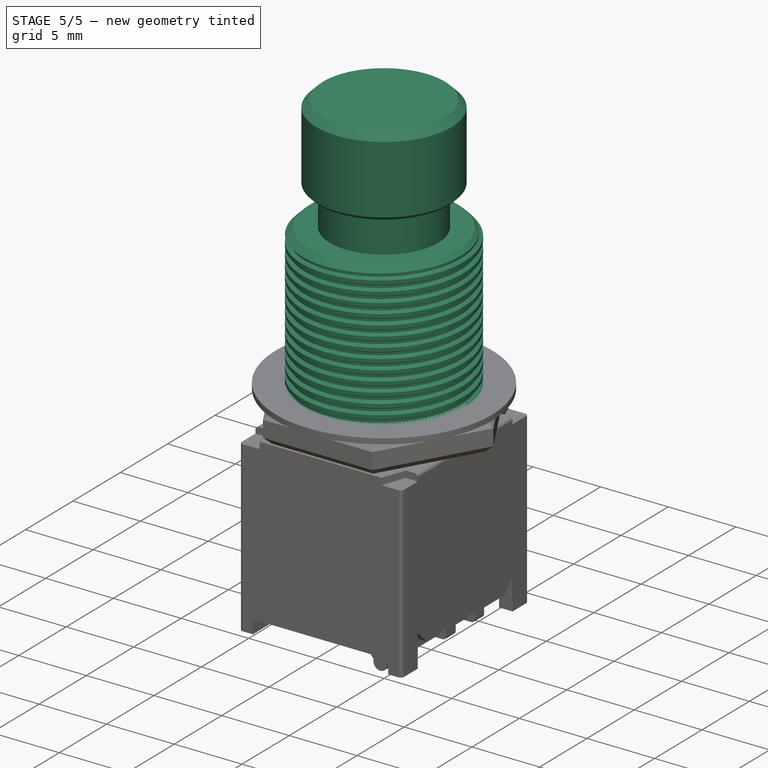
[diagram: stage 5 of 5 — iso view after this stage's code; geometry added in this stage tinted green]
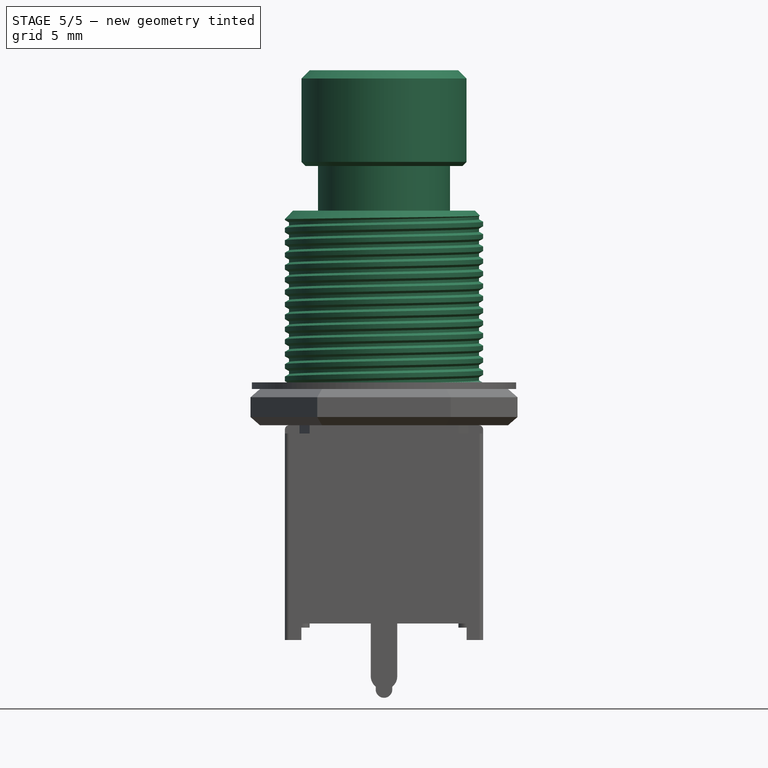
[diagram: stage 5 of 5 — front view after this stage's code; geometry added in this stage tinted green]
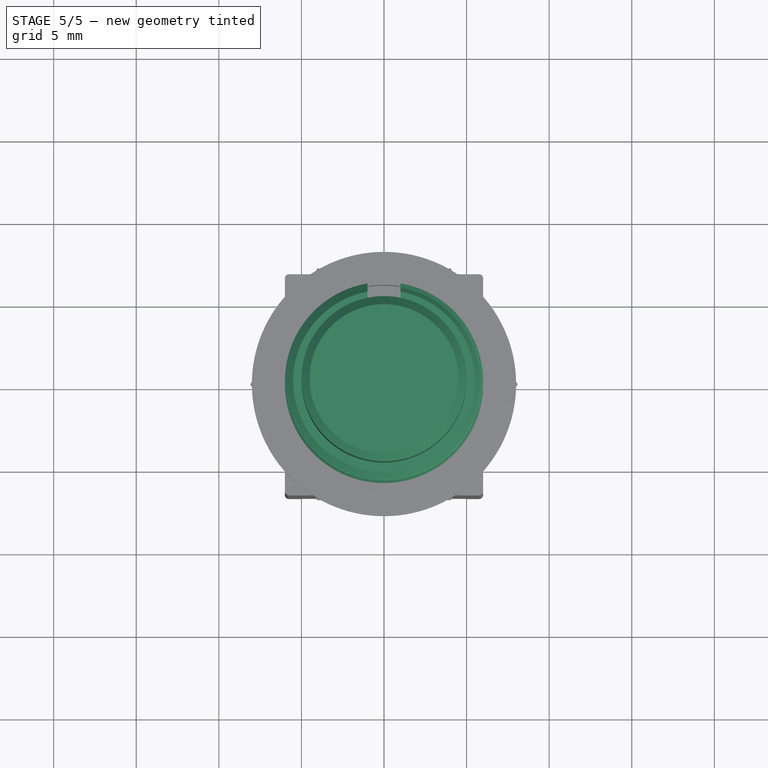
[diagram: stage 5 of 5 — top view after this stage's code; geometry added in this stage tinted green]
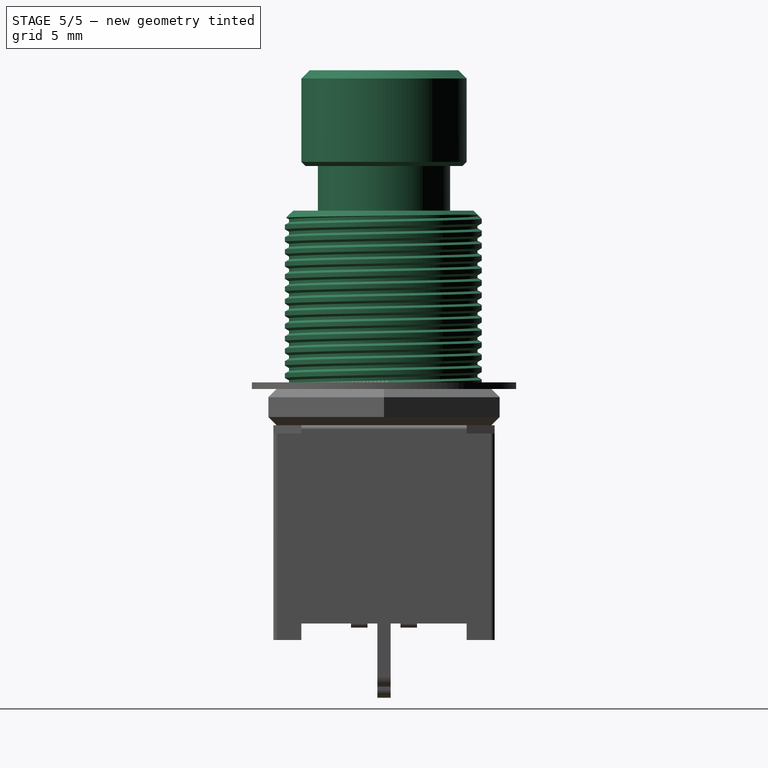
[diagram: stage 5 of 5 — right view after this stage's code; geometry added in this stage tinted green]
FEATURE [PartDesign::ShapeBinder] CopyPad001
  Placement = pos=(0,0,1) rot=(0,0,1;0rad)
  TraceSupport = false
FEATURE [Sketcher::SketchObject] Sketch002
  AttachmentOffset = pos=(0,0,0) rot=(0,0,1;1.5708rad)
  MapMode = 5
  Placement = pos=(0,0,14) rot=(0,0,1;1.5708rad)
  Support = -> [CopyPad001]
  sketch-geometry (1):
    g0: Circle CenterX=0 CenterY=0 CenterZ=0 NormalX=0 NormalY=0 NormalZ=1 AngleXU=0 Radius=6
  constraints (2):
    c: Coincident(g0,g-1)
    c: Radius(g0) = 6
FEATURE [PartDesign::Pad] Pad002
  Length = 12
  Length2 = 100
  Placement = pos=(0,0,1) rot=(0,0,1;0rad)
  Profile = -> Sketch002
  Type = 0
FEATURE [Part::Helix] Helix001
  Angle = 0
  AttacherType = Attacher::AttachEngine3D
  Height = 12
  LocalCoord = 0
  Pitch = 0.75
  Placement = pos=(0,0,14) rot=(0,0,1;1.5708rad)
  Radius = 6
  Style = 1
  expr: Placement.Base.z = Pad.Length + Pad001.Length
FEATURE [PartDesign::ShapeBinder] ShapeBinder
  Placement = pos=(0,0,14) rot=(0,0,1;1.5708rad)
  Support = -> [Helix001]
  TraceSupport = false
FEATURE [Sketcher::SketchObject] Sketch003
  MapMode = 5
  Placement = pos=(0,0,0) rot=(1,0,0;1.5708rad)
  Support = -> [XZ_Plane001]
  sketch-geometry (4):
    g0: LineSegment StartX=5.75 StartY=14.4082 StartZ=0 EndX=7.31055 EndY=15.3092 EndZ=0
    g1: LineSegment StartX=7.31055 StartY=15.3092 StartZ=0 EndX=7.31055 EndY=13.3197 EndZ=0
    g2: LineSegment StartX=7.31055 StartY=13.3197 StartZ=0 EndX=5.75 EndY=14.2207 EndZ=0
    g3: LineSegment StartX=5.75 StartY=14.2207 StartZ=0 EndX=5.75 EndY=14.4082 EndZ=0
  constraints (10):
    c: Coincident(g0,g1)
    c: Coincident(g1,g2)
    c: Coincident(g2,g3)
    c: Coincident(g3,g0)
    c: Vertical(g1)
    c: Vertical(g3)
    c: Equal(g2,g0)
    c: Angle(g2,g0) = 1.0472
    c: DistanceY(g3,g3) = 0.1875
    c: DistanceX(g-1,g2) = 5.75
FEATURE [PartDesign::ShapeBinder] CopySubtractivePipe
  Placement = pos=(0,0,1) rot=(0,0,1;0rad)
  TraceSupport = false
FEATURE [Sketcher::SketchObject] Sketch004
  AttachmentOffset = pos=(0,0,0) rot=(0,0,1;1.5708rad)
  MapMode = 5
  Placement = pos=(0,0,26) rot=(0,0,1;1.5708rad)
  Support = -> [CopySubtractivePipe]
  sketch-geometry (1):
    g0: Circle CenterX=0 CenterY=0 CenterZ=0 NormalX=0 NormalY=0 NormalZ=1 AngleXU=0 Radius=4
  constraints (2):
    c: Coincident(g0,g-1)
    c: Radius(g0) = 4
FEATURE [PartDesign::Pad] Pad003
  Length = 2.7
  Length2 = 100
  Placement = pos=(0,0,1) rot=(0,0,1;0rad)
  Profile = -> Sketch004
  Type = 0
FEATURE [Sketcher::SketchObject] Sketch005
  AttachmentOffset = pos=(0,0,0) rot=(0,0,1;1.5708rad)
  MapMode = 5
  Placement = pos=(0,0,28.7) rot=(0,0,1;1.5708rad)
  Support = -> [Pad003]
  sketch-geometry (1):
    g0: Circle CenterX=0 CenterY=0 CenterZ=0 NormalX=0 NormalY=0 NormalZ=1 AngleXU=0 Radius=5
  constraints (2):
    c: Coincident(g0,g-1)
    c: Radius(g0) = 5
FEATURE [PartDesign::Pad] Pad004
  BaseFeature = -> Pad003
  Length = 5.8
  Length2 = 100
  Placement = pos=(0,0,1) rot=(0,0,1;0rad)
  Profile = -> Sketch005
  Type = 0
FEATURE [PartDesign::Chamfer] Chamfer
  Base = -> Pad004 [Edge3]
  BaseFeature = -> Pad004
  Placement = pos=(0,0,1) rot=(0,0,1;0rad)
  Size = 0.5
FEATURE [PartDesign::Chamfer] Chamfer001
  Base = -> Pad002 [Edge3]
  BaseFeature = -> Pad002
  Placement = pos=(0,0,1) rot=(0,0,1;0rad)
  Size = 0.5
FEATURE [PartDesign::SubtractivePipe] SubtractivePipe
  AuxilleryCurvelinear = true
  AuxillerySpineTangent = false
  BaseFeature = -> Chamfer001
  Binormal = (0,0,0)
  Mode = 2
  Placement = pos=(0,0,1) rot=(0,0,1;0rad)
  Profile = -> Sketch003
  Spine = -> ShapeBinder
  SpineTangent = false
  Transformation = 0
  Transition = 0
FEATURE [Sketcher::SketchObject] Sketch008
  AttachmentOffset = pos=(0,0,13) rot=(0,0,1;1.5708rad)
  MapMode = 5
  Placement = pos=(0,0,13) rot=(0,0,1;1.5708rad)
  Support = -> [XY_Plane001]
  sketch-geometry (1):
    g0: Circle CenterX=0 CenterY=0 CenterZ=0 NormalX=0 NormalY=0 NormalZ=1 AngleXU=0 Radius=6
  constraints (2):
    c: Coincident(g0,g-1)
    c: Radius(g0) = 6
FEATURE [PartDesign::Pad] Pad007
  BaseFeature = -> SubtractivePipe
  Length = 1
  Length2 = 100
  Placement = pos=(0,0,1) rot=(0,0,1;0rad)
  Profile = -> Sketch008
  Type = 0
FEATURE [PartDesign::Chamfer] Chamfer002
  Base = -> Chamfer [Edge3]
  BaseFeature = -> Chamfer
  Placement = pos=(0,0,1) rot=(0,0,1;0rad)
  Size = 0.25
FEATURE [Sketcher::SketchObject] Sketch015
  AttachmentOffset = pos=(0,0,25) rot=(0,0,1;0rad)
  MapMode = 5
  Placement = pos=(0,0,25) rot=(0,0,1;0rad)
  Support = -> [XY_Plane001]
  sketch-geometry (4):
    g0: LineSegment StartX=-1 StartY=5.05 StartZ=0 EndX=1 EndY=5.05 EndZ=0
    g1: LineSegment StartX=1 StartY=5.05 StartZ=0 EndX=1 EndY=6.05 EndZ=0
    g2: LineSegment StartX=1 StartY=6.05 StartZ=0 EndX=-1 EndY=6.05 EndZ=0
    g3: LineSegment StartX=-1 StartY=6.05 StartZ=0 EndX=-1 EndY=5.05 EndZ=0
  constraints (11):
    c: Coincident(g0,g1)
    c: Coincident(g1,g2)
    c: Coincident(g2,g3)
    c: Coincident(g3,g0)
    c: Horizontal(g0)
    c: Vertical(g1)
    c: Vertical(g3)
    c: Symmetric(g1,g2,g-2)
    c: DistanceY(g1,g1) = 1
    c: DistanceX(g2,g2) = 2
    c: DistanceY(g-1,g2) = 6.05
FEATURE [PartDesign::Pocket] Pocket005
  BaseFeature = -> Pad007
  Length = 5
  Length2 = 100
  Midplane = true
  Placement = pos=(0,0,1) rot=(0,0,1;0rad)
  Profile = -> Sketch015
  Type = 1
FEATURE [PartDesign::Fillet] Fillet001
  Base = -> Fillet [Edge51,Edge14]
  BaseFeature = -> Fillet
  Radius = 0.25
FEATURE [PartDesign::Fillet] Fillet003
  Base = -> Fillet001 [Edge146,Edge152,Edge148,Edge141,Edge45,Edge56,Edge49,Edge37]
  BaseFeature = -> Fillet001
  Radius = 0.49
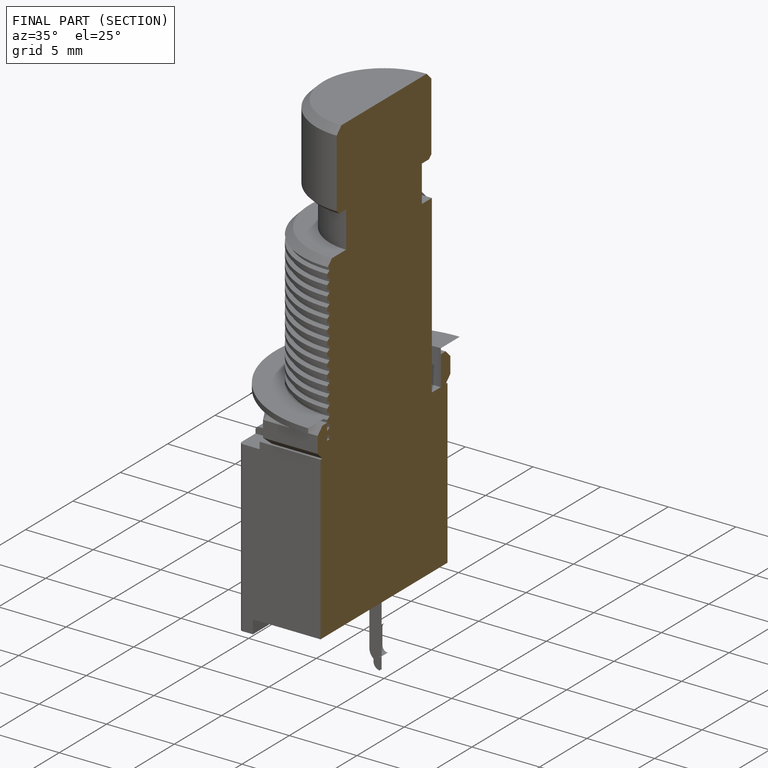
[diagram: finished part — half-section view (interior)]
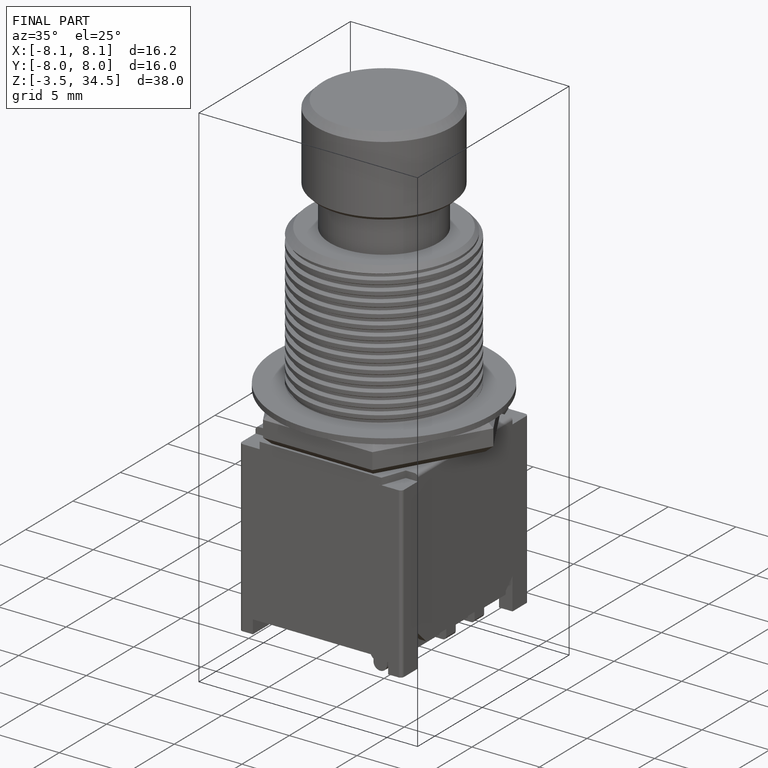
[diagram: finished part — iso view with bounding-box wireframe]
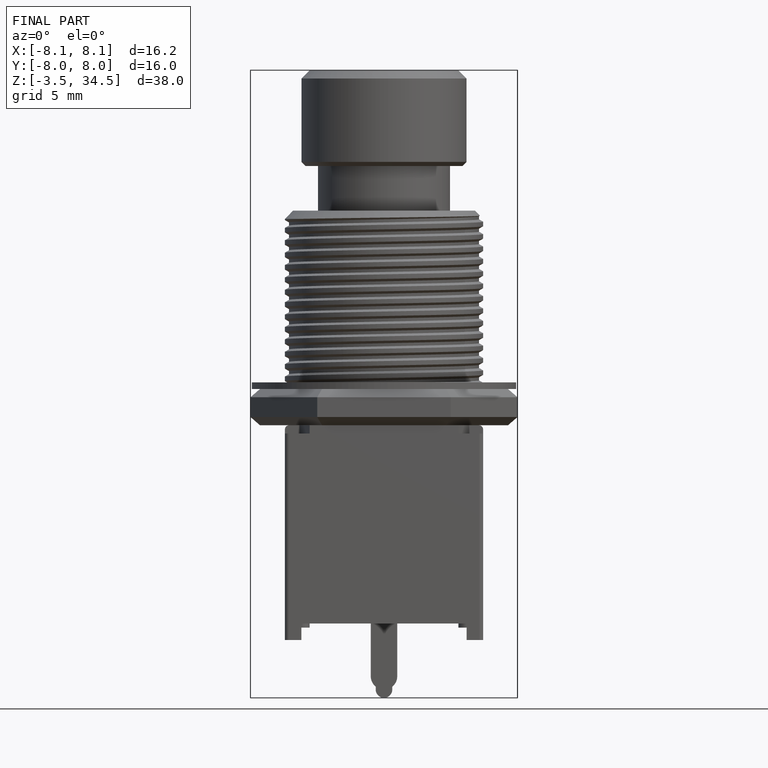
[diagram: finished part — front view with bounding-box wireframe]
